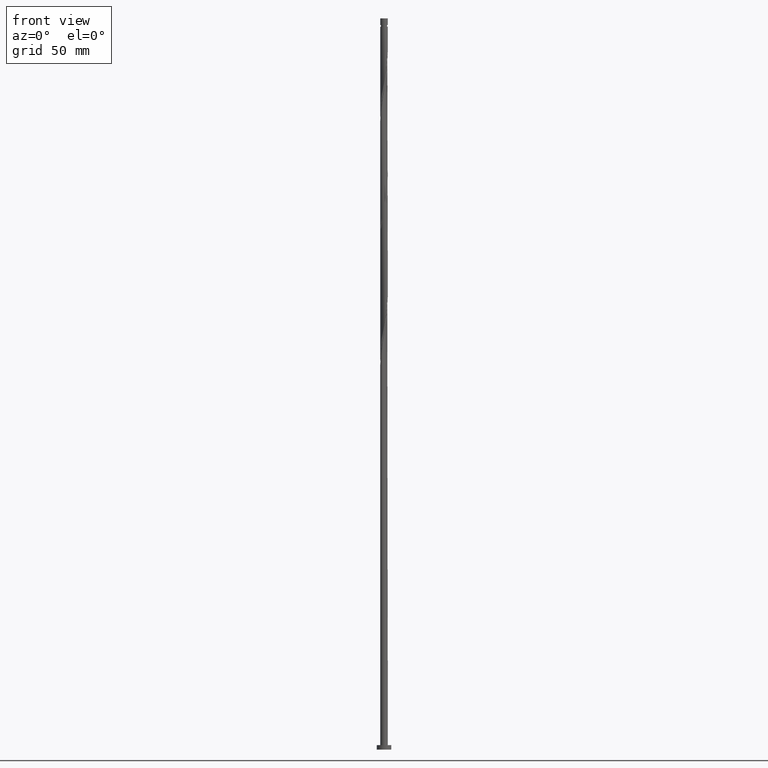
[diagram: clean part render]
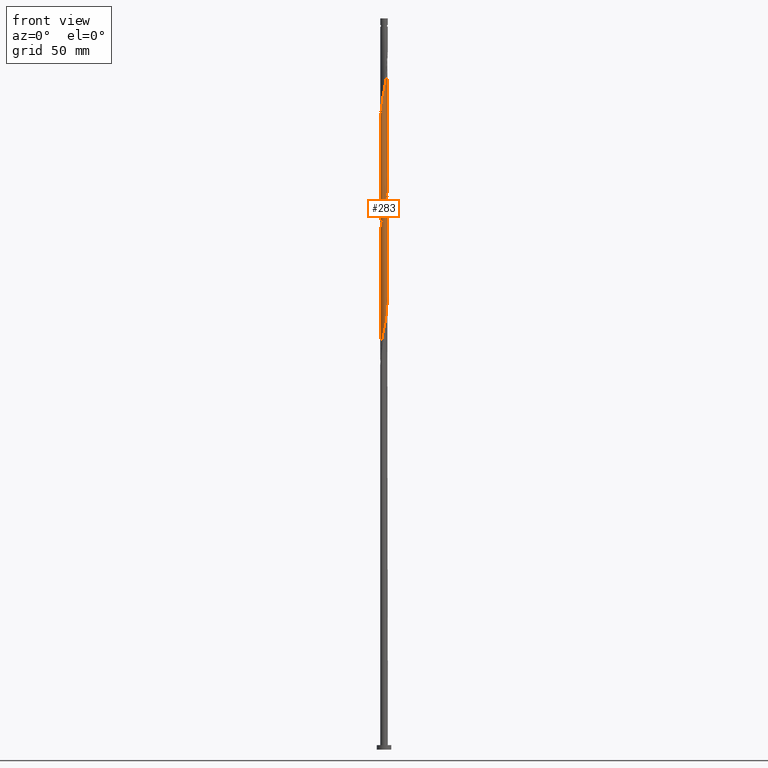
[diagram: same view with one face highlighted and labeled with its STEP entity id]
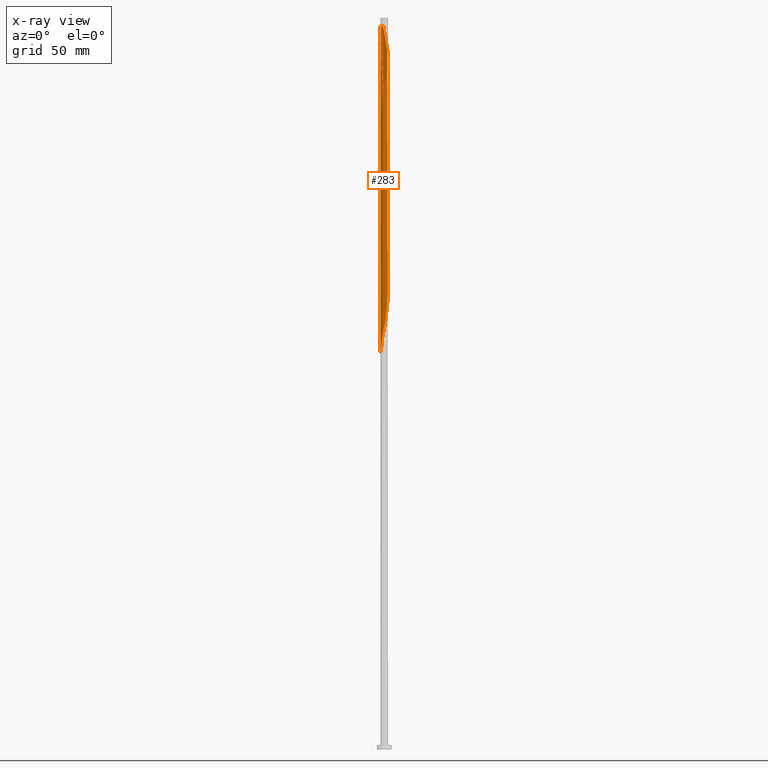
[diagram: x-ray of the same camera — body ghosted, the highlighted face saturated]
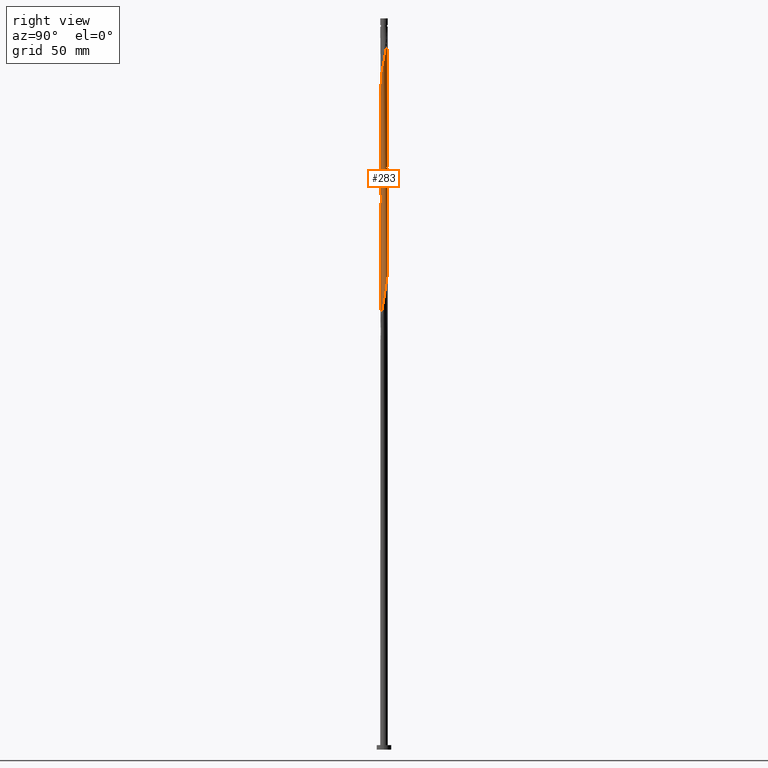
[diagram: same view with one face highlighted and labeled with its STEP entity id]
A machine part, front view. The second image highlights one B-rep face of the part: STEP entity #283.
The next image is the same camera in x-ray: the body ghosted, the highlighted face saturated — about 0% of this face is hidden behind the body in this view.
A second angle (right view) of the same face is appended — the face is thin or edge-on in the first view.
In plain terms, the highlighted cylindrical surface (bore or boss wall) has radius 2.6 mm, axis along (-0, -0, -1).
Its self-contained STEP definition (entity closure, byte-faithful):
#3 = CARTESIAN_POINT ( 'NONE',  ( 0.2457138587352527825, 2.600999896540526990, 490.4786788288061530 ) ) ;
#30 = CARTESIAN_POINT ( 'NONE',  ( 0.7484224432186228348, 2.503086017032787769, 487.8745121621395811 ) ) ;
#49 = EDGE_CURVE ( 'NONE', #1168, #1640, #1856, .T. ) ;
#58 = CARTESIAN_POINT ( 'NONE',  ( -1.649341725464942066, 2.026141069821819851, 339.4370121621395242 ) ) ;
#63 = CARTESIAN_POINT ( 'NONE',  ( -2.012930600452522700, 1.665438728966103232, 425.3745121621396379 ) ) ;
#71 = CARTESIAN_POINT ( 'NONE',  ( 1.831136162958732161, -1.845789899393960987, 382.4057621621394674 ) ) ;
#75 = CARTESIAN_POINT ( 'NONE',  ( -0.9853960080739302407, 2.406032981335035625, 418.8640954954728954 ) ) ;
#81 = CARTESIAN_POINT ( 'NONE',  ( 0.5173934672954483283, 2.547999999999998266, 327.7182621621395811 ) ) ;
#83 = CARTESIAN_POINT ( 'NONE',  ( 1.240734511745017699, 2.299163681329198017, 407.1453454954729523 ) ) ;
#89 = CARTESIAN_POINT ( 'NONE',  ( -2.599979352611139660, 0.01036175640307092014, 351.1557621621394105 ) ) ;
#93 = CARTESIAN_POINT ( 'NONE',  ( -2.599999999999999645, 1.395076711723889238E-15, 267.8751258068029983 ) ) ;
#94 = CARTESIAN_POINT ( 'NONE',  ( -1.435855649197093298, -2.167560507729555219, 442.3015954954729523 ) ) ;
#98 = VERTEX_POINT ( 'NONE', #160 ) ;
#101 = CARTESIAN_POINT ( 'NONE',  ( 0.7484224432186206144, -2.503086017032784660, 292.5620121621395811 ) ) ;
#112 = CARTESIAN_POINT ( 'NONE',  ( -2.599999999999999645, 1.395076711723889238E-15, 267.8751258068029983 ) ) ;
#118 = CIRCLE ( 'NONE', #1679, 2.599999999999951239 ) ;
#123 = CARTESIAN_POINT ( 'NONE',  ( -2.398102436323722220, -1.004542037397260446, 434.4890954954728954 ) ) ;
#135 = CARTESIAN_POINT ( 'NONE',  ( -2.600000000000003197, -6.159957958914396626E-16, 429.2280651841427357 ) ) ;
#155 = CARTESIAN_POINT ( 'NONE',  ( 2.012930600452525365, 1.665438728966104787, 480.0620121621395242 ) ) ;
#160 = CARTESIAN_POINT ( 'NONE',  ( -2.599999999999951239, 0.000000000000000000, 494.3849288288062098 ) ) ;
#163 = CARTESIAN_POINT ( 'NONE',  ( 2.156047140890863467, 1.453086620355562131, 478.7599288288062667 ) ) ;
#169 = ORIENTED_EDGE ( 'NONE', *, *, #1428, .F. ) ;
#173 = CARTESIAN_POINT ( 'NONE',  ( -0.5173934672955038394, 2.548000000000671506, 494.3849288288061530 ) ) ;
#185 = CARTESIAN_POINT ( 'NONE',  ( 0.9853960080739317950, 2.406032981335038734, 486.5724288288061530 ) ) ;
#192 =( BOUNDED_CURVE ( )  B_SPLINE_CURVE ( 2, ( #703, #1924, #1283, #222, #1124, #1132, #1606, #361, #556, #63, #824, #1760, #379, #1422, #75, #680, #974, #1595, #232, #834, #1290, #1751, #1431, #83, #687, #980, #243, #1438, #1933, #996, #1940, #567, #1153, #1504, #1026 ),
 .UNSPECIFIED., .F., .T. ) 
 B_SPLINE_CURVE_WITH_KNOTS ( ( 3, 2, 2, 2, 2, 2, 2, 2, 2, 2, 2, 2, 2, 2, 2, 2, 2, 3 ),
 ( 0.4295286902180873168, 0.4296875000000000000, 0.4375000000000000000, 0.4453125000000000000, 0.4531250000000000000, 0.4609375000000000000, 0.4687500000000000000, 0.4765625000000000000, 0.4843750000000000000, 0.4921875000000000000, 0.5000000000000000000, 0.5078125000000000000, 0.5156250000000000000, 0.5234375000000000000, 0.5312500000000000000, 0.5390625000000000000, 0.5468750000000000000, 0.5545286902180873723 ),
 .UNSPECIFIED. ) 
 CURVE ( )  GEOMETRIC_REPRESENTATION_ITEM ( )  RATIONAL_B_SPLINE_CURVE ( ( 0.9089165573359879735, 0.9090019243628927326, 0.9090909090909844448, 0.9047133878838902188, 0.9090909090909844448, 0.9047133878838902188, 0.9090909090909844448, 0.9047133878838902188, 0.9090909090909844448, 0.9047133878838902188, 0.9090909090909844448, 0.9047133878838902188, 0.9090909090909844448, 0.9047133878838902188, 0.9090909090909844448, 0.9047133878838902188, 0.9090909090909844448, 0.9047133878838902188, 0.9090909090909844448, 0.9047133878838902188, 0.9090909090909844448, 0.9047133878838902188, 0.9090909090909844448, 0.9047133878838902188, 0.9090909090909844448, 0.9047133878838902188, 0.9090909090909844448, 0.9047133878838902188, 0.9090909090909844448, 0.9047133878838902188, 0.9090909090909844448, 0.9047133878838902188, 0.9090909090909844448, 0.9048023726119819310, 0.9089165573359879735 ) ) 
 REPRESENTATION_ITEM ( '' )  );
#199 = CARTESIAN_POINT ( 'NONE',  ( 2.599999999999999645, -0.005180898773087638798, 392.8487722522856984 ) ) ;
#209 = CARTESIAN_POINT ( 'NONE',  ( 2.398102436323719111, -1.004542037397260668, 387.6140954954728386 ) ) ;
#216 = ORIENTED_EDGE ( 'NONE', *, *, #385, .F. ) ;
#219 = CARTESIAN_POINT ( 'NONE',  ( 2.547999999999998266, -0.5173934672954479952, 390.2182621621394105 ) ) ;
#222 = CARTESIAN_POINT ( 'NONE',  ( -2.598958808681755883, 0.2664373715413931309, 433.1870121621395811 ) ) ;
#229 = CARTESIAN_POINT ( 'NONE',  ( 2.012930600452522700, -1.665438728966103232, 383.7078454954729523 ) ) ;
#232 = CARTESIAN_POINT ( 'NONE',  ( 0.01036175640307070676, 2.599979352611139660, 413.6557621621394674 ) ) ;
#239 = CARTESIAN_POINT ( 'NONE',  ( -0.2457138587352517001, 2.600999896540523881, 331.6245121621396379 ) ) ;
#243 = CARTESIAN_POINT ( 'NONE',  ( 1.845789899393960987, 1.831136162958732161, 403.2390954954728386 ) ) ;
#248 = CARTESIAN_POINT ( 'NONE',  ( 2.598958808681755883, -0.2664373715413946297, 391.5203454954728386 ) ) ;
#256 = CARTESIAN_POINT ( 'NONE',  ( -0.01036175640307049686, -2.599979352611139660, 288.6557621621394105 ) ) ;
#267 = CARTESIAN_POINT ( 'NONE',  ( -0.5173934672954479952, -2.547999999999998266, 286.0515954954728954 ) ) ;
#276 = CARTESIAN_POINT ( 'NONE',  ( 1.649341725464941399, -2.026141069821820739, 297.7703454954729523 ) ) ;
#283 = ADVANCED_FACE ( 'NONE', ( #1297 ), #695, .T. ) ;
#289 = CARTESIAN_POINT ( 'NONE',  ( 2.167560507729555219, -1.435855649197093742, 463.1349288288063235 ) ) ;
#296 = CARTESIAN_POINT ( 'NONE',  ( -2.503086017032784660, -0.7484224432186206144, 271.7286788288062098 ) ) ;
#336 = VECTOR ( 'NONE', #1767, 1000.000000000000000 ) ;
#345 = CARTESIAN_POINT ( 'NONE',  ( 2.548000000000002263, 0.5173934672954475511, 473.5515954954729523 ) ) ;
#358 = CARTESIAN_POINT ( 'NONE',  ( -1.435855649197091077, 2.167560507729552999, 338.1349288288062098 ) ) ;
#361 = CARTESIAN_POINT ( 'NONE',  ( -2.299163681329198461, 1.240734511745017254, 427.9786788288062667 ) ) ;
#368 = CARTESIAN_POINT ( 'NONE',  ( 1.453086620355561465, 2.156047140890859026, 322.5099288288062098 ) ) ;
#377 = CARTESIAN_POINT ( 'NONE',  ( 1.665438728966103232, 2.012930600452522256, 321.2078454954728954 ) ) ;
#379 = CARTESIAN_POINT ( 'NONE',  ( -1.435855649197091077, 2.167560507729552999, 421.4682621621394674 ) ) ;
#385 = EDGE_CURVE ( 'NONE', #1313, #1301, #192, .T. ) ;
#388 = CARTESIAN_POINT ( 'NONE',  ( -2.167560507729552999, -1.435855649197091077, 358.9682621621394105 ) ) ;
#390 = DIRECTION ( 'NONE',  ( -0.000000000000000000, -0.000000000000000000, -1.000000000000000000 ) ) ;
#399 = CARTESIAN_POINT ( 'NONE',  ( 2.156047140890859026, -1.453086620355561243, 385.0099288288061530 ) ) ;
#407 = CARTESIAN_POINT ( 'NONE',  ( 0.2457138587352511172, -2.600999896540523881, 289.9578454954728954 ) ) ;
#417 = CARTESIAN_POINT ( 'NONE',  ( 1.435855649197090855, -2.167560507729553443, 296.4682621621394674 ) ) ;
#422 = CARTESIAN_POINT ( 'NONE',  ( 0.5173934672954476621, -2.548000000000002263, 452.7182621621395242 ) ) ;
#431 = CARTESIAN_POINT ( 'NONE',  ( 1.665438728966104787, -2.012930600452525365, 459.2286788288061530 ) ) ;
#443 = CARTESIAN_POINT ( 'NONE',  ( -1.240734511745017477, -2.299163681329198017, 282.1453454954728386 ) ) ;
#452 = ORIENTED_EDGE ( 'NONE', *, *, #489, .F. ) ;
#485 = DIRECTION ( 'NONE',  ( -0.000000000000000000, -0.000000000000000000, -1.000000000000000000 ) ) ;
#489 = EDGE_CURVE ( 'NONE', #1202, #1301, #709, .T. ) ;
#492 = CARTESIAN_POINT ( 'NONE',  ( 2.552042956786657157, -0.4970681509769389050, 468.3432621621395242 ) ) ;
#506 = CARTESIAN_POINT ( 'NONE',  ( 2.308979945637286590, 1.222369572929239645, 315.9995121621395242 ) ) ;
#517 = CARTESIAN_POINT ( 'NONE',  ( -2.299163681329198461, 1.240734511745017254, 344.6453454954728954 ) ) ;
#525 = CARTESIAN_POINT ( 'NONE',  ( -2.547999999999998266, 0.5173934672954477731, 348.5515954954728386 ) ) ;
#529 = CARTESIAN_POINT ( 'NONE',  ( 0.000000000000000000, 0.000000000000000000, 500.0000000000000000 ) ) ;
#535 = CARTESIAN_POINT ( 'NONE',  ( -0.01036175640307049686, -2.599979352611139660, 371.9890954954727817 ) ) ;
#545 = CARTESIAN_POINT ( 'NONE',  ( -0.7484224432186206144, 2.503086017032784660, 334.2286788288062667 ) ) ;
#553 = CARTESIAN_POINT ( 'NONE',  ( -0.2457138587352525050, -2.600999896540526990, 448.8120121621396379 ) ) ;
#556 = CARTESIAN_POINT ( 'NONE',  ( -2.156047140890859914, 1.453086620355560132, 426.6765954954728954 ) ) ;
#563 = CARTESIAN_POINT ( 'NONE',  ( -1.831136162958735492, -1.845789899393962319, 439.6974288288062098 ) ) ;
#567 = CARTESIAN_POINT ( 'NONE',  ( 2.503086017032784660, 0.7484224432186205034, 396.7286788288062098 ) ) ;
#575 = CARTESIAN_POINT ( 'NONE',  ( 0.4970681509769359629, -2.552042956786654049, 291.2599288288060961 ) ) ;
#582 = DIRECTION ( 'NONE',  ( -0.000000000000000000, -0.000000000000000000, -1.000000000000000000 ) ) ;
#584 = CARTESIAN_POINT ( 'NONE',  ( 2.547999999999998266, -0.5173934672954479952, 306.8849288288062098 ) ) ;
#595 = CARTESIAN_POINT ( 'NONE',  ( -2.599979352611143657, -0.01036175640307016033, 429.2807621621396379 ) ) ;
#606 = CARTESIAN_POINT ( 'NONE',  ( 2.503086017032788657, -0.7484224432186226128, 467.0411788288062098 ) ) ;
#614 = CARTESIAN_POINT ( 'NONE',  ( -0.01036175640306909694, 2.599979352611143657, 491.7807621621394674 ) ) ;
#636 = CARTESIAN_POINT ( 'NONE',  ( 2.599999999999999645, -1.101523495830084963E-15, 392.8751258068029983 ) ) ;
#655 = CARTESIAN_POINT ( 'NONE',  ( 0.4970681509769359629, -2.552042956786654049, 374.5932621621394674 ) ) ;
#670 = CARTESIAN_POINT ( 'NONE',  ( -0.4970681509769364070, 2.552042956786653605, 332.9265954954728954 ) ) ;
#679 = CARTESIAN_POINT ( 'NONE',  ( 1.649341725464941399, -2.026141069821820739, 381.1036788288061530 ) ) ;
#680 = CARTESIAN_POINT ( 'NONE',  ( -0.7484224432186206144, 2.503086017032784660, 417.5620121621395242 ) ) ;
#684 = CARTESIAN_POINT ( 'NONE',  ( -2.497041191318240649, 0.7683495630495025264, 347.2495121621395811 ) ) ;
#687 = CARTESIAN_POINT ( 'NONE',  ( 1.453086620355561465, 2.156047140890859026, 405.8432621621395242 ) ) ;
#691 = CARTESIAN_POINT ( 'NONE',  ( 2.497041191318241538, -0.7683495630495015272, 388.9161788288062667 ) ) ;
#695 = CYLINDRICAL_SURFACE ( 'NONE', #1610, 2.600000000000000089 ) ;
#701 = CARTESIAN_POINT ( 'NONE',  ( -0.9853960080739317950, -2.406032981335039622, 444.9057621621395811 ) ) ;
#703 = CARTESIAN_POINT ( 'NONE',  ( -2.599999999999999645, 1.395076711723889238E-15, 434.5417924734696271 ) ) ;
#707 = CARTESIAN_POINT ( 'NONE',  ( -1.665438728966103232, -2.012930600452522700, 279.5411788288062667 ) ) ;
#709 = LINE ( 'NONE', #898, #336 ) ;
#715 = CARTESIAN_POINT ( 'NONE',  ( -0.5173934672955038394, 2.548000000000671506, 494.3849288288061530 ) ) ;
#719 = CARTESIAN_POINT ( 'NONE',  ( -2.497041191318244202, -0.7683495630495029705, 433.1870121621395811 ) ) ;
#729 = CARTESIAN_POINT ( 'NONE',  ( 0.7683495630495027484, -2.497041191318244202, 454.0203454954728386 ) ) ;
#739 = CARTESIAN_POINT ( 'NONE',  ( -2.552042956786653605, -0.4970681509769361295, 270.4265954954728954 ) ) ;
#746 = VECTOR ( 'NONE', #916, 1000.000000000000000 ) ;
#762 = CARTESIAN_POINT ( 'NONE',  ( 1.222369572929242754, 2.308979945637288811, 485.2703454954728954 ) ) ;
#766 = ORIENTED_EDGE ( 'NONE', *, *, #1663, .T. ) ;
#779 = CARTESIAN_POINT ( 'NONE',  ( 1.649341725464944064, 2.026141069821822516, 482.6661788288062098 ) ) ;
#801 = CARTESIAN_POINT ( 'NONE',  ( 2.600000000000000089, 3.184081677783117698E-16, 494.3849288288062098 ) ) ;
#812 = CARTESIAN_POINT ( 'NONE',  ( -0.5173934672954479952, -2.547999999999998266, 369.3849288288060393 ) ) ;
#821 = CARTESIAN_POINT ( 'NONE',  ( -1.453086620355560132, -2.156047140890859914, 364.1765954954727817 ) ) ;
#824 = CARTESIAN_POINT ( 'NONE',  ( -1.831136162958732161, 1.845789899393961209, 424.0724288288061530 ) ) ;
#831 = CARTESIAN_POINT ( 'NONE',  ( 2.503086017032784660, 0.7484224432186205034, 313.3953454954729523 ) ) ;
#834 = CARTESIAN_POINT ( 'NONE',  ( 0.2664373715413932975, 2.598958808681755883, 412.3536788288062098 ) ) ;
#839 = CARTESIAN_POINT ( 'NONE',  ( 0.2457138587352511172, -2.600999896540523881, 373.2911788288062098 ) ) ;
#850 = CARTESIAN_POINT ( 'NONE',  ( -0.2664373715413933530, -2.598958808681755883, 370.6870121621396947 ) ) ;
#853 = DIRECTION ( 'NONE',  ( -1.000000000000000000, 0.000000000000000000, 0.000000000000000000 ) ) ;
#858 = CARTESIAN_POINT ( 'NONE',  ( -0.7683495630495025264, -2.497041191318240649, 284.7495121621394674 ) ) ;
#864 = CARTESIAN_POINT ( 'NONE',  ( 1.222369572929238979, -2.308979945637287479, 295.1661788288063235 ) ) ;
#873 = CARTESIAN_POINT ( 'NONE',  ( -2.026141069821819851, -1.649341725464942288, 276.9370121621395811 ) ) ;
#883 = CARTESIAN_POINT ( 'NONE',  ( 2.308979945637289699, -1.222369572929242754, 464.4370121621395811 ) ) ;
#895 = CARTESIAN_POINT ( 'NONE',  ( -2.299163681329201570, -1.240734511745017921, 435.7911788288060961 ) ) ;
#898 = CARTESIAN_POINT ( 'NONE',  ( 2.600000000000000089, 3.184081677783117698E-16, 500.0000000000000000 ) ) ;
#911 = CARTESIAN_POINT ( 'NONE',  ( 0.4970681509769390716, 2.552042956786657157, 489.1765954954728954 ) ) ;
#916 = DIRECTION ( 'NONE',  ( -0.000000000000000000, -0.000000000000000000, -1.000000000000000000 ) ) ;
#951 = CARTESIAN_POINT ( 'NONE',  ( -1.845789899393960987, -1.831136162958732827, 361.5724288288061530 ) ) ;
#959 = ORIENTED_EDGE ( 'NONE', *, *, #1393, .F. ) ;
#961 = CARTESIAN_POINT ( 'NONE',  ( -1.222369572929239645, 2.308979945637287479, 336.8328454954728954 ) ) ;
#970 = CARTESIAN_POINT ( 'NONE',  ( 1.845789899393960987, 1.831136162958732161, 319.9057621621394105 ) ) ;
#974 = CARTESIAN_POINT ( 'NONE',  ( -0.4970681509769364070, 2.552042956786653605, 416.2599288288061530 ) ) ;
#979 = CARTESIAN_POINT ( 'NONE',  ( -2.598958808681755883, 0.2664373715413931309, 349.8536788288062667 ) ) ;
#980 = CARTESIAN_POINT ( 'NONE',  ( 1.665438728966103232, 2.012930600452522256, 404.5411788288062098 ) ) ;
#984 = CARTESIAN_POINT ( 'NONE',  ( 0.000000000000000000, 0.000000000000000000, 494.3849288288062098 ) ) ;
#987 = CARTESIAN_POINT ( 'NONE',  ( 1.240734511745017699, 2.299163681329198017, 323.8120121621395242 ) ) ;
#990 =( BOUNDED_CURVE ( )  B_SPLINE_CURVE ( 2, ( #1556, #199, #1399, #248, #219, #691, #209, #1420, #399, #229, #71, #679, #1104, #1881, #1569, #1273, #655, #839, #535, #850, #812, #1427, #1717, #1614, #821, #1092, #951, #1446, #388, #1409, #1288, #1889, #1436, #1580, #89, #979, #525, #684, #1912, #517, #1249, #1281, #1111, #58, #358, #961, #1727, #545, #670, #239, #1261, #1130, #81, #1738, #1758, #987, #368, #377, #970, #1867, #1604, #506, #1591, #831, #1898, #1122, #1749, #1032, #584, #1662, #1170, #1151, #1623, #1012, #1643, #276, #417, #864, #1808, #101, #575, #407, #256, #1295, #267, #858, #1458, #443, #1327, #707, #1471, #873, #1922, #1765, #1342, #296, #739, #1959, #112 ),
 .UNSPECIFIED., .F., .T. ) 
 B_SPLINE_CURVE_WITH_KNOTS ( ( 3, 2, 2, 2, 2, 2, 2, 2, 2, 2, 2, 2, 2, 2, 2, 2, 2, 2, 2, 2, 2, 2, 2, 2, 2, 2, 2, 2, 2, 2, 2, 2, 2, 2, 2, 2, 2, 2, 2, 2, 2, 2, 2, 2, 2, 2, 2, 2, 2, 3 ),
 ( 0.5545286902180873723, 0.5546875000000000000, 0.5625000000000000000, 0.5703125000000000000, 0.5781250000000000000, 0.5859375000000000000, 0.5937500000000000000, 0.6015625000000000000, 0.6093750000000000000, 0.6171875000000000000, 0.6250000000000000000, 0.6328125000000000000, 0.6406250000000000000, 0.6484375000000000000, 0.6562500000000000000, 0.6640625000000000000, 0.6718750000000000000, 0.6796875000000000000, 0.6875000000000000000, 0.6953125000000000000, 0.7031250000000000000, 0.7109375000000000000, 0.7187500000000000000, 0.7265625000000000000, 0.7343750000000000000, 0.7421875000000000000, 0.7500000000000000000, 0.7578125000000000000, 0.7656250000000000000, 0.7734375000000000000, 0.7812500000000000000, 0.7890625000000000000, 0.7968750000000000000, 0.8046875000000000000, 0.8125000000000000000, 0.8203125000000000000, 0.8281250000000000000, 0.8359375000000000000, 0.8437500000000000000, 0.8515625000000000000, 0.8593750000000000000, 0.8671875000000000000, 0.8750000000000000000, 0.8828125000000000000, 0.8906250000000000000, 0.8984375000000000000, 0.9062500000000000000, 0.9140625000000000000, 0.9218750000000000000, 0.9295286902180871502 ),
 .UNSPECIFIED. ) 
 CURVE ( )  GEOMETRIC_REPRESENTATION_ITEM ( )  RATIONAL_B_SPLINE_CURVE ( ( 0.9089165573359879735, 0.9090019243628927326, 0.9090909090909844448, 0.9047133878838902188, 0.9090909090909844448, 0.9047133878838902188, 0.9090909090909844448, 0.9047133878838902188, 0.9090909090909844448, 0.9047133878838902188, 0.9090909090909844448, 0.9047133878838902188, 0.9090909090909844448, 0.9047133878838902188, 0.9090909090909844448, 0.9047133878838902188, 0.9090909090909844448, 0.9047133878838902188, 0.9090909090909844448, 0.9047133878838902188, 0.9090909090909844448, 0.9047133878838902188, 0.9090909090909844448, 0.9047133878838902188, 0.9090909090909844448, 0.9047133878838902188, 0.9090909090909844448, 0.9047133878838902188, 0.9090909090909844448, 0.9047133878838902188, 0.9090909090909844448, 0.9047133878838902188, 0.9090909090909844448, 0.9047133878838902188, 0.9090909090909844448, 0.9047133878838902188, 0.9090909090909844448, 0.9047133878838902188, 0.9090909090909844448, 0.9047133878838902188, 0.9090909090909844448, 0.9047133878838902188, 0.9090909090909844448, 0.9047133878838902188, 0.9090909090909844448, 0.9047133878838902188, 0.9090909090909844448, 0.9047133878838902188, 0.9090909090909844448, 0.9047133878838902188, 0.9090909090909844448, 0.9047133878838902188, 0.9090909090909844448, 0.9047133878838902188, 0.9090909090909844448, 0.9047133878838902188, 0.9090909090909844448, 0.9047133878838902188, 0.9090909090909844448, 0.9047133878838902188, 0.9090909090909844448, 0.9047133878838902188, 0.9090909090909844448, 0.9047133878838902188, 0.9090909090909844448, 0.9047133878838902188, 0.9090909090909844448, 0.9047133878838902188, 0.9090909090909844448, 0.9047133878838902188, 0.9090909090909844448, 0.9047133878838902188, 0.9090909090909844448, 0.9047133878838902188, 0.9090909090909844448, 0.9047133878838902188, 0.9090909090909844448, 0.9047133878838902188, 0.9090909090909844448, 0.9047133878838902188, 0.9090909090909844448, 0.9047133878838902188, 0.9090909090909844448, 0.9047133878838902188, 0.9090909090909844448, 0.9047133878838902188, 0.9090909090909844448, 0.9047133878838902188, 0.9090909090909844448, 0.9047133878838902188, 0.9090909090909844448, 0.9047133878838902188, 0.9090909090909844448, 0.9047133878838902188, 0.9090909090909844448, 0.9047133878838902188, 0.9090909090909844448, 0.9048023726119820420, 0.9089165573359877515 ) ) 
 REPRESENTATION_ITEM ( '' )  );
#996 = CARTESIAN_POINT ( 'NONE',  ( 2.308979945637286590, 1.222369572929239645, 399.3328454954729523 ) ) ;
#1003 = CARTESIAN_POINT ( 'NONE',  ( -2.600000000000002753, -0.005180898773079927952, 429.2544187386598651 ) ) ;
#1012 = CARTESIAN_POINT ( 'NONE',  ( 2.012930600452522700, -1.665438728966103232, 300.3745121621395242 ) ) ;
#1022 = CARTESIAN_POINT ( 'NONE',  ( 1.845789899393962319, -1.831136162958735714, 460.5307621621395242 ) ) ;
#1026 = CARTESIAN_POINT ( 'NONE',  ( 2.599999999999999645, -1.101523495830084963E-15, 392.8751258068029983 ) ) ;
#1032 = CARTESIAN_POINT ( 'NONE',  ( 2.598958808681755883, -0.2664373715413946297, 308.1870121621395242 ) ) ;
#1042 = CARTESIAN_POINT ( 'NONE',  ( 2.398102436323722220, 1.004542037397260890, 476.1557621621395811 ) ) ;
#1050 = CARTESIAN_POINT ( 'NONE',  ( 2.600999896540526990, -0.2457138587352526715, 469.6453454954728954 ) ) ;
#1059 = ORIENTED_EDGE ( 'NONE', *, *, #1068, .F. ) ;
#1068 = EDGE_CURVE ( 'NONE', #98, #1313, #1981, .T. ) ;
#1092 = CARTESIAN_POINT ( 'NONE',  ( -1.665438728966103232, -2.012930600452522700, 362.8745121621395242 ) ) ;
#1104 = CARTESIAN_POINT ( 'NONE',  ( 1.435855649197090855, -2.167560507729553443, 379.8015954954727817 ) ) ;
#1111 = CARTESIAN_POINT ( 'NONE',  ( -1.831136162958732161, 1.845789899393961209, 340.7390954954727817 ) ) ;
#1122 = CARTESIAN_POINT ( 'NONE',  ( 2.600999896540523881, 0.2457138587352509784, 310.7911788288062098 ) ) ;
#1124 = CARTESIAN_POINT ( 'NONE',  ( -2.547999999999998266, 0.5173934672954477731, 431.8849288288061530 ) ) ;
#1130 = CARTESIAN_POINT ( 'NONE',  ( 0.2664373715413932975, 2.598958808681755883, 329.0203454954728954 ) ) ;
#1132 = CARTESIAN_POINT ( 'NONE',  ( -2.497041191318240649, 0.7683495630495025264, 430.5828454954729523 ) ) ;
#1139 = CARTESIAN_POINT ( 'NONE',  ( 1.240734511745017699, -2.299163681329201570, 456.6245121621395811 ) ) ;
#1151 = CARTESIAN_POINT ( 'NONE',  ( 2.299163681329198017, -1.240734511745017477, 302.9786788288062667 ) ) ;
#1153 = CARTESIAN_POINT ( 'NONE',  ( 2.552042956786653605, 0.4970681509769367401, 395.4265954954727817 ) ) ;
#1157 = ORIENTED_EDGE ( 'NONE', *, *, #49, .T. ) ;
#1158 = CARTESIAN_POINT ( 'NONE',  ( -0.4970681509769376838, -2.552042956786657157, 447.5099288288062098 ) ) ;
#1168 = VERTEX_POINT ( 'NONE', #1199 ) ;
#1170 = CARTESIAN_POINT ( 'NONE',  ( 2.398102436323719111, -1.004542037397260668, 304.2807621621394674 ) ) ;
#1182 = CARTESIAN_POINT ( 'NONE',  ( -2.598958808681759880, -0.2664373715413927424, 430.5828454954729523 ) ) ;
#1184 = VECTOR ( 'NONE', #485, 1000.000000000000000 ) ;
#1199 = CARTESIAN_POINT ( 'NONE',  ( -2.600000000000003197, -6.159957958914396626E-16, 429.2280651841427357 ) ) ;
#1202 = VERTEX_POINT ( 'NONE', #801 ) ;
#1224 = CARTESIAN_POINT ( 'NONE',  ( 2.497041191318244646, 0.7683495630495014161, 474.8536788288061530 ) ) ;
#1238 = CARTESIAN_POINT ( 'NONE',  ( -2.600000000000000089, 0.000000000000000000, 500.0000000000000000 ) ) ;
#1249 = CARTESIAN_POINT ( 'NONE',  ( -2.156047140890859914, 1.453086620355560132, 343.3432621621395242 ) ) ;
#1261 = CARTESIAN_POINT ( 'NONE',  ( 0.01036175640307070676, 2.599979352611139660, 330.3224288288061530 ) ) ;
#1273 = CARTESIAN_POINT ( 'NONE',  ( 0.7484224432186206144, -2.503086017032784660, 375.8953454954728954 ) ) ;
#1281 = CARTESIAN_POINT ( 'NONE',  ( -2.012930600452522700, 1.665438728966103232, 342.0411788288062098 ) ) ;
#1283 = CARTESIAN_POINT ( 'NONE',  ( -2.599979352611139660, 0.01036175640307092014, 434.4890954954728954 ) ) ;
#1288 = CARTESIAN_POINT ( 'NONE',  ( -2.406032981335036514, -0.9853960080739292415, 356.3640954954728954 ) ) ;
#1290 = CARTESIAN_POINT ( 'NONE',  ( 0.5173934672954483283, 2.547999999999998266, 411.0515954954728954 ) ) ;
#1295 = CARTESIAN_POINT ( 'NONE',  ( -0.2664373715413933530, -2.598958808681755883, 287.3536788288062098 ) ) ;
#1297 = FACE_OUTER_BOUND ( 'NONE', #1506, .T. ) ;
#1301 = VERTEX_POINT ( 'NONE', #636 ) ;
#1303 = CARTESIAN_POINT ( 'NONE',  ( -2.012930600452525365, -1.665438728966104787, 438.3953454954728954 ) ) ;
#1313 = VERTEX_POINT ( 'NONE', #1690 ) ;
#1315 = CARTESIAN_POINT ( 'NONE',  ( -1.222369572929240977, -2.308979945637290143, 443.6036788288061530 ) ) ;
#1327 = CARTESIAN_POINT ( 'NONE',  ( -1.453086620355560132, -2.156047140890859914, 280.8432621621394674 ) ) ;
#1342 = CARTESIAN_POINT ( 'NONE',  ( -2.406032981335036514, -0.9853960080739292415, 273.0307621621394674 ) ) ;
#1387 = CARTESIAN_POINT ( 'NONE',  ( 1.831136162958735714, 1.845789899393962319, 481.3640954954727249 ) ) ;
#1393 = EDGE_CURVE ( 'NONE', #1301, #1640, #990, .T. ) ;
#1399 = CARTESIAN_POINT ( 'NONE',  ( 2.599979352611139660, -0.01036175640307060442, 392.8224288288061530 ) ) ;
#1409 = CARTESIAN_POINT ( 'NONE',  ( -2.308979945637287479, -1.222369572929239423, 357.6661788288062667 ) ) ;
#1420 = CARTESIAN_POINT ( 'NONE',  ( 2.299163681329198017, -1.240734511745017477, 386.3120121621395242 ) ) ;
#1422 = CARTESIAN_POINT ( 'NONE',  ( -1.222369572929239645, 2.308979945637287479, 420.1661788288061530 ) ) ;
#1427 = CARTESIAN_POINT ( 'NONE',  ( -0.7683495630495025264, -2.497041191318240649, 368.0828454954728954 ) ) ;
#1428 = EDGE_CURVE ( 'NONE', #1168, #1651, #1822, .T. ) ;
#1431 = CARTESIAN_POINT ( 'NONE',  ( 1.004542037397260668, 2.398102436323719111, 408.4474288288062098 ) ) ;
#1436 = CARTESIAN_POINT ( 'NONE',  ( -2.552042956786653605, -0.4970681509769361295, 353.7599288288061530 ) ) ;
#1438 = CARTESIAN_POINT ( 'NONE',  ( 2.026141069821820739, 1.649341725464940511, 401.9370121621396379 ) ) ;
#1446 = CARTESIAN_POINT ( 'NONE',  ( -2.026141069821819851, -1.649341725464942288, 360.2703454954729523 ) ) ;
#1458 = CARTESIAN_POINT ( 'NONE',  ( -1.004542037397260668, -2.398102436323719999, 283.4474288288062098 ) ) ;
#1471 = CARTESIAN_POINT ( 'NONE',  ( -1.845789899393960987, -1.831136162958732827, 278.2390954954728386 ) ) ;
#1482 = CARTESIAN_POINT ( 'NONE',  ( 0.01036175640306952021, -2.599979352611144101, 450.1140954954728386 ) ) ;
#1493 = CARTESIAN_POINT ( 'NONE',  ( 2.406032981335038734, -0.9853960080739317950, 465.7390954954728386 ) ) ;
#1504 = CARTESIAN_POINT ( 'NONE',  ( 2.600000000000000977, 0.2508475188153419522, 394.1511059122189522 ) ) ;
#1506 = EDGE_LOOP ( 'NONE', ( #1059, #766, #169, #1157, #959, #452, #1958, #216 ) ) ;
#1517 = CARTESIAN_POINT ( 'NONE',  ( -2.600000000000000089, 0.000000000000000000, 500.0000000000000000 ) ) ;
#1543 = CARTESIAN_POINT ( 'NONE',  ( 2.299163681329201570, 1.240734511745017699, 477.4578454954728954 ) ) ;
#1556 = CARTESIAN_POINT ( 'NONE',  ( 2.599999999999999645, -1.101523495830084963E-15, 392.8751258068029983 ) ) ;
#1569 = CARTESIAN_POINT ( 'NONE',  ( 0.9853960080739292415, -2.406032981335036514, 377.1974288288062098 ) ) ;
#1580 = CARTESIAN_POINT ( 'NONE',  ( -2.600999896540523881, -0.2457138587352512560, 352.4578454954728954 ) ) ;
#1591 = CARTESIAN_POINT ( 'NONE',  ( 2.406032981335036514, 0.9853960080739290195, 314.6974288288062098 ) ) ;
#1595 = CARTESIAN_POINT ( 'NONE',  ( -0.2457138587352517001, 2.600999896540523881, 414.9578454954729523 ) ) ;
#1604 = CARTESIAN_POINT ( 'NONE',  ( 2.167560507729553443, 1.435855649197090189, 317.3015954954728954 ) ) ;
#1606 = CARTESIAN_POINT ( 'NONE',  ( -2.398102436323719999, 1.004542037397259557, 429.2807621621395242 ) ) ;
#1610 = AXIS2_PLACEMENT_3D ( 'NONE', #529, #390, #853 ) ;
#1614 = CARTESIAN_POINT ( 'NONE',  ( -1.240734511745017477, -2.299163681329198017, 365.4786788288062667 ) ) ;
#1623 = CARTESIAN_POINT ( 'NONE',  ( 2.156047140890859026, -1.453086620355561243, 301.6765954954728386 ) ) ;
#1632 = CARTESIAN_POINT ( 'NONE',  ( -1.649341725464944730, -2.026141069821822516, 440.9995121621395242 ) ) ;
#1640 = VERTEX_POINT ( 'NONE', #93 ) ;
#1643 = CARTESIAN_POINT ( 'NONE',  ( 1.831136162958732161, -1.845789899393960987, 299.0724288288060961 ) ) ;
#1651 = VERTEX_POINT ( 'NONE', #715 ) ;
#1652 = CARTESIAN_POINT ( 'NONE',  ( 2.026141069821822072, -1.649341725464944730, 461.8328454954728954 ) ) ;
#1662 = CARTESIAN_POINT ( 'NONE',  ( 2.497041191318241538, -0.7683495630495015272, 305.5828454954729523 ) ) ;
#1663 = EDGE_CURVE ( 'NONE', #98, #1651, #118, .T. ) ;
#1679 = AXIS2_PLACEMENT_3D ( 'NONE', #984, #582, #1937 ) ;
#1690 = CARTESIAN_POINT ( 'NONE',  ( -2.599999999999999645, 1.395076711723889238E-15, 434.5417924734696840 ) ) ;
#1717 = CARTESIAN_POINT ( 'NONE',  ( -1.004542037397260668, -2.398102436323719999, 366.7807621621395242 ) ) ;
#1727 = CARTESIAN_POINT ( 'NONE',  ( -0.9853960080739302407, 2.406032981335035625, 335.5307621621395811 ) ) ;
#1738 = CARTESIAN_POINT ( 'NONE',  ( 0.7683495630495017492, 2.497041191318241538, 326.4161788288061530 ) ) ;
#1749 = CARTESIAN_POINT ( 'NONE',  ( 2.599979352611139660, -0.01036175640307060442, 309.4890954954728386 ) ) ;
#1751 = CARTESIAN_POINT ( 'NONE',  ( 0.7683495630495017492, 2.497041191318241538, 409.7495121621395242 ) ) ;
#1758 = CARTESIAN_POINT ( 'NONE',  ( 1.004542037397260668, 2.398102436323719111, 325.1140954954728954 ) ) ;
#1760 = CARTESIAN_POINT ( 'NONE',  ( -1.649341725464942066, 2.026141069821819851, 422.7703454954728386 ) ) ;
#1765 = CARTESIAN_POINT ( 'NONE',  ( -2.308979945637287479, -1.222369572929239423, 274.3328454954728954 ) ) ;
#1767 = DIRECTION ( 'NONE',  ( -0.000000000000000000, -0.000000000000000000, -1.000000000000000000 ) ) ;
#1774 = CARTESIAN_POINT ( 'NONE',  ( -2.156047140890863467, -1.453086620355561465, 437.0932621621395242 ) ) ;
#1784 = CARTESIAN_POINT ( 'NONE',  ( 0.2664373715413926869, -2.598958808681759880, 451.4161788288061530 ) ) ;
#1794 = CARTESIAN_POINT ( 'NONE',  ( 1.453086620355561243, -2.156047140890863467, 457.9265954954728386 ) ) ;
#1808 = CARTESIAN_POINT ( 'NONE',  ( 0.9853960080739292415, -2.406032981335036514, 293.8640954954728386 ) ) ;
#1819 = CARTESIAN_POINT ( 'NONE',  ( 2.598958808681760324, 0.2664373715413937416, 472.2495121621395242 ) ) ;
#1822 =( BOUNDED_CURVE ( )  B_SPLINE_CURVE ( 2, ( #135, #1003, #595, #1182, #1930, #719, #123, #895, #1774, #1303, #563, #1632, #94, #1315, #701, #1938, #1158, #553, #1482, #1784, #422, #729, #1948, #1139, #1794, #431, #1022, #1652, #289, #883, #1493, #606, #492, #1050, #1969, #1819, #345, #1224, #1042, #1543, #163, #155, #1387, #779, #1828, #762, #185, #30, #911, #3, #614, #1978, #173 ),
 .UNSPECIFIED., .F., .T. ) 
 B_SPLINE_CURVE_WITH_KNOTS ( ( 3, 2, 2, 2, 2, 2, 2, 2, 2, 2, 2, 2, 2, 2, 2, 2, 2, 2, 2, 2, 2, 2, 2, 2, 2, 2, 3 ),
 ( 0.5545286902180871502, 0.5546875000000000000, 0.5625000000000000000, 0.5703125000000000000, 0.5781250000000000000, 0.5859375000000000000, 0.5937500000000000000, 0.6015625000000000000, 0.6093750000000000000, 0.6171875000000000000, 0.6250000000000000000, 0.6328125000000000000, 0.6406250000000000000, 0.6484375000000000000, 0.6562500000000000000, 0.6640625000000000000, 0.6718750000000000000, 0.6796875000000000000, 0.6875000000000000000, 0.6953125000000000000, 0.7031250000000000000, 0.7109375000000000000, 0.7187500000000000000, 0.7265625000000000000, 0.7343750000000000000, 0.7421875000000000000, 0.7500000000000000000 ),
 .UNSPECIFIED. ) 
 CURVE ( )  GEOMETRIC_REPRESENTATION_ITEM ( )  RATIONAL_B_SPLINE_CURVE ( ( 0.9089165573359933026, 0.9090019243628981727, 0.9090909090909899959, 0.9047133878838958809, 0.9090909090909899959, 0.9047133878838958809, 0.9090909090909899959, 0.9047133878838958809, 0.9090909090909899959, 0.9047133878838958809, 0.9090909090909899959, 0.9047133878838958809, 0.9090909090909899959, 0.9047133878838958809, 0.9090909090909899959, 0.9047133878838958809, 0.9090909090909899959, 0.9047133878838958809, 0.9090909090909899959, 0.9047133878838958809, 0.9090909090909899959, 0.9047133878838958809, 0.9090909090909899959, 0.9047133878838958809, 0.9090909090909899959, 0.9047133878838958809, 0.9090909090909899959, 0.9047133878838958809, 0.9090909090909899959, 0.9047133878838958809, 0.9090909090909899959, 0.9047133878838958809, 0.9090909090909899959, 0.9047133878838958809, 0.9090909090909899959, 0.9047133878838958809, 0.9090909090909899959, 0.9047133878838958809, 0.9090909090909899959, 0.9047133878838958809, 0.9090909090909899959, 0.9047133878838958809, 0.9090909090909899959, 0.9047133878838958809, 0.9090909090909899959, 0.9047133878838958809, 0.9090909090909899959, 0.9047133878838958809, 0.9090909090909899959, 0.9047133878838958809, 0.9090909090909899959, 0.9047133878838958809, 0.9090909090909899959 ) ) 
 REPRESENTATION_ITEM ( '' )  );
#1828 = CARTESIAN_POINT ( 'NONE',  ( 1.435855649197093742, 2.167560507729555219, 483.9682621621394105 ) ) ;
#1856 = LINE ( 'NONE', #1517, #746 ) ;
#1867 = CARTESIAN_POINT ( 'NONE',  ( 2.026141069821820739, 1.649341725464940511, 318.6036788288062098 ) ) ;
#1881 = CARTESIAN_POINT ( 'NONE',  ( 1.222369572929238979, -2.308979945637287479, 378.4995121621395811 ) ) ;
#1889 = CARTESIAN_POINT ( 'NONE',  ( -2.503086017032784660, -0.7484224432186206144, 355.0620121621394105 ) ) ;
#1898 = CARTESIAN_POINT ( 'NONE',  ( 2.552042956786653605, 0.4970681509769367401, 312.0932621621395242 ) ) ;
#1912 = CARTESIAN_POINT ( 'NONE',  ( -2.398102436323719999, 1.004542037397259557, 345.9474288288062098 ) ) ;
#1922 = CARTESIAN_POINT ( 'NONE',  ( -2.167560507729552999, -1.435855649197091077, 275.6349288288062098 ) ) ;
#1924 = CARTESIAN_POINT ( 'NONE',  ( -2.599999999999999201, 0.005180898773086130456, 434.5154389189523840 ) ) ;
#1930 = CARTESIAN_POINT ( 'NONE',  ( -2.548000000000002263, -0.5173934672954478842, 431.8849288288060961 ) ) ;
#1933 = CARTESIAN_POINT ( 'NONE',  ( 2.167560507729553443, 1.435855649197090189, 400.6349288288061530 ) ) ;
#1937 = DIRECTION ( 'NONE',  ( -1.000000000000000000, 0.000000000000000000, 0.000000000000000000 ) ) ;
#1938 = CARTESIAN_POINT ( 'NONE',  ( -0.7484224432186226128, -2.503086017032788657, 446.2078454954728954 ) ) ;
#1940 = CARTESIAN_POINT ( 'NONE',  ( 2.406032981335036514, 0.9853960080739290195, 398.0307621621394674 ) ) ;
#1948 = CARTESIAN_POINT ( 'NONE',  ( 1.004542037397260890, -2.398102436323722220, 455.3224288288062098 ) ) ;
#1958 = ORIENTED_EDGE ( 'NONE', *, *, #489, .T. ) ;
#1959 = CARTESIAN_POINT ( 'NONE',  ( -2.600000000000000533, -0.2508475188153493352, 269.1511059122190659 ) ) ;
#1969 = CARTESIAN_POINT ( 'NONE',  ( 2.599979352611143657, 0.01036175640306919929, 470.9474288288062098 ) ) ;
#1978 = CARTESIAN_POINT ( 'NONE',  ( -0.2664373715413935195, 2.598958808681760324, 493.0828454954728954 ) ) ;
#1981 = LINE ( 'NONE', #1238, #1184 ) ;